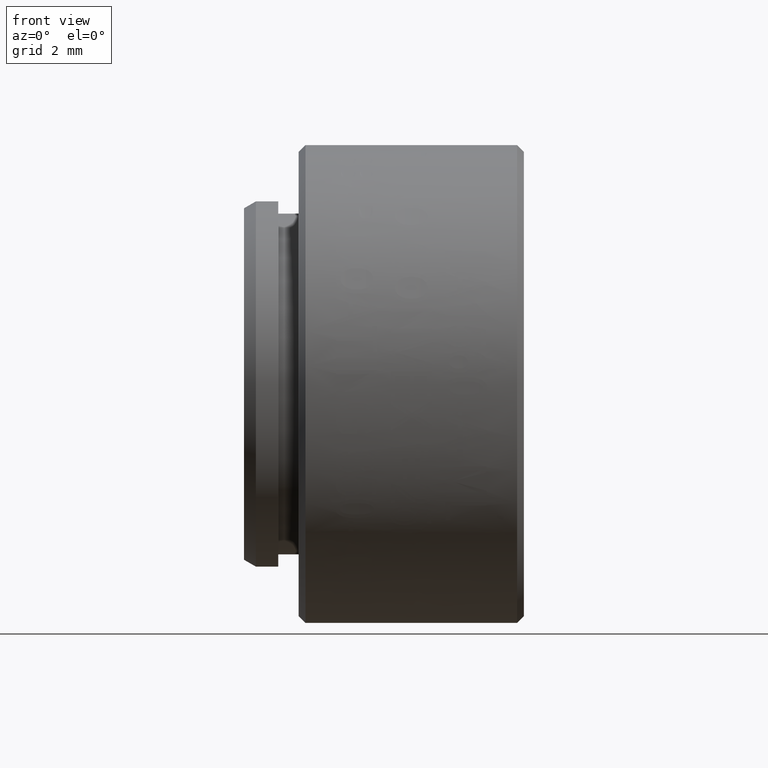
[diagram: clean part render]
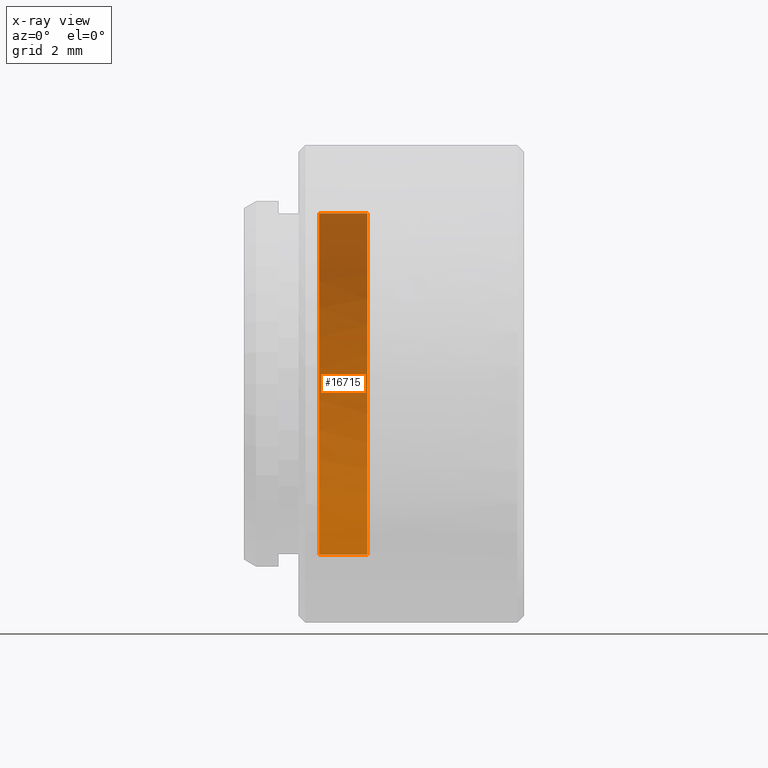
[diagram: x-ray — body ghosted, one internal face saturated and labeled with its STEP entity id]
A machine part, front view, then the same camera in x-ray: the body is ghosted and one INTERNAL B-rep face — a face not visible from any outside direction — is saturated and labeled: STEP entity #16715.
In plain terms, the highlighted cylindrical surface (partial cylindrical patch) has radius 6.35 mm, axis along (1, 0, 0).
Its self-contained STEP definition (entity closure, byte-faithful):
#166 = ORIENTED_EDGE ( 'NONE', *, *, #17242, .F. ) ;
#169 = CARTESIAN_POINT ( 'NONE',  ( 0.1429185844645814400, -2.710694776580951600E-034, 2.667043799498168400E-033 ) ) ;
#220 = DIRECTION ( 'NONE',  ( 1.000000000000000000, 0.0000000000000000000, 0.0000000000000000000 ) ) ;
#950 = AXIS2_PLACEMENT_3D ( 'NONE', #8305, #18062, #9690 ) ;
#2390 = LINE ( 'NONE', #9633, #16385 ) ;
#2480 = DIRECTION ( 'NONE',  ( 1.000000000000000000, 0.0000000000000000000, 0.0000000000000000000 ) ) ;
#2683 = ORIENTED_EDGE ( 'NONE', *, *, #16416, .T. ) ;
#3184 = CARTESIAN_POINT ( 'NONE',  ( -0.02435466720999877500, 3.061616997868383600E-017, 0.2500000000000000600 ) ) ;
#3658 = CYLINDRICAL_SURFACE ( 'NONE', #11406, 0.2500000000000000600 ) ;
#4196 = EDGE_LOOP ( 'NONE', ( #2683, #4261, #166, #15904, #11870 ) ) ;
#4261 = ORIENTED_EDGE ( 'NONE', *, *, #11041, .T. ) ;
#4499 = VERTEX_POINT ( 'NONE', #3184 ) ;
#6600 = VERTEX_POINT ( 'NONE', #11324 ) ;
#6620 = VERTEX_POINT ( 'NONE', #14197 ) ;
#6832 = DIRECTION ( 'NONE',  ( 1.000000000000000000, 0.0000000000000000000, 0.0000000000000000000 ) ) ;
#7184 = DIRECTION ( 'NONE',  ( 1.000000000000000000, 0.0000000000000000000, 0.0000000000000000000 ) ) ;
#7579 = DIRECTION ( 'NONE',  ( 1.000000000000000000, 0.0000000000000000000, 0.0000000000000000000 ) ) ;
#8287 = AXIS2_PLACEMENT_3D ( 'NONE', #10856, #2480, #12245 ) ;
#8305 = CARTESIAN_POINT ( 'NONE',  ( -0.02435466720999877500, -2.710694776580951600E-034, 2.667043799498168400E-033 ) ) ;
#8560 = DIRECTION ( 'NONE',  ( 0.0000000000000000000, 0.0000000000000000000, -1.000000000000000000 ) ) ;
#8915 = CARTESIAN_POINT ( 'NONE',  ( 0.1429185844645814400, 3.061616997868383600E-017, 0.2500000000000000600 ) ) ;
#9016 = LINE ( 'NONE', #8915, #16003 ) ;
#9119 = CIRCLE ( 'NONE', #14581, 0.2500000000000000600 ) ;
#9633 = CARTESIAN_POINT ( 'NONE',  ( 0.1429185844645814400, -2.710694776580951600E-034, -0.2500000000000000600 ) ) ;
#9690 = DIRECTION ( 'NONE',  ( 0.0000000000000000000, 0.0000000000000000000, -1.000000000000000000 ) ) ;
#10230 = EDGE_CURVE ( 'NONE', #6600, #6620, #18001, .T. ) ;
#10856 = CARTESIAN_POINT ( 'NONE',  ( -0.02435466720999877500, -2.710694776580951600E-034, 2.667043799498168400E-033 ) ) ;
#11041 = EDGE_CURVE ( 'NONE', #15329, #4499, #9016, .T. ) ;
#11086 = FACE_OUTER_BOUND ( 'NONE', #4196, .T. ) ;
#11324 = CARTESIAN_POINT ( 'NONE',  ( -0.02435466720999877500, -2.710694776580951600E-034, -0.2500000000000000600 ) ) ;
#11406 = AXIS2_PLACEMENT_3D ( 'NONE', #169, #220, #8560 ) ;
#11870 = ORIENTED_EDGE ( 'NONE', *, *, #14273, .F. ) ;
#12245 = DIRECTION ( 'NONE',  ( 0.0000000000000000000, 0.0000000000000000000, -1.000000000000000000 ) ) ;
#14197 = CARTESIAN_POINT ( 'NONE',  ( -0.02435466720999875800, 0.2500000000000000600, 2.667043799498168400E-033 ) ) ;
#14255 = CARTESIAN_POINT ( 'NONE',  ( -0.09499999999999994600, 3.061616997868383600E-017, 0.2500000000000000600 ) ) ;
#14273 = EDGE_CURVE ( 'NONE', #14944, #6600, #2390, .T. ) ;
#14581 = AXIS2_PLACEMENT_3D ( 'NONE', #15527, #7184, #16954 ) ;
#14944 = VERTEX_POINT ( 'NONE', #15729 ) ;
#15329 = VERTEX_POINT ( 'NONE', #14255 ) ;
#15527 = CARTESIAN_POINT ( 'NONE',  ( -0.09499999999999994600, -2.710694776580951600E-034, 2.667043799498168400E-033 ) ) ;
#15729 = CARTESIAN_POINT ( 'NONE',  ( -0.09499999999999994600, -2.710694776580951600E-034, -0.2500000000000000600 ) ) ;
#15882 = CIRCLE ( 'NONE', #8287, 0.2500000000000000600 ) ;
#15904 = ORIENTED_EDGE ( 'NONE', *, *, #10230, .F. ) ;
#16003 = VECTOR ( 'NONE', #7579, 39.37007874015748100 ) ;
#16385 = VECTOR ( 'NONE', #6832, 39.37007874015748100 ) ;
#16416 = EDGE_CURVE ( 'NONE', #14944, #15329, #9119, .T. ) ;
#16715 = ADVANCED_FACE ( 'NONE', ( #11086 ), #3658, .T. ) ;
#16954 = DIRECTION ( 'NONE',  ( 0.0000000000000000000, 0.0000000000000000000, -1.000000000000000000 ) ) ;
#17242 = EDGE_CURVE ( 'NONE', #6620, #4499, #15882, .T. ) ;
#18001 = CIRCLE ( 'NONE', #950, 0.2500000000000000600 ) ;
#18062 = DIRECTION ( 'NONE',  ( 1.000000000000000000, 0.0000000000000000000, 0.0000000000000000000 ) ) ;